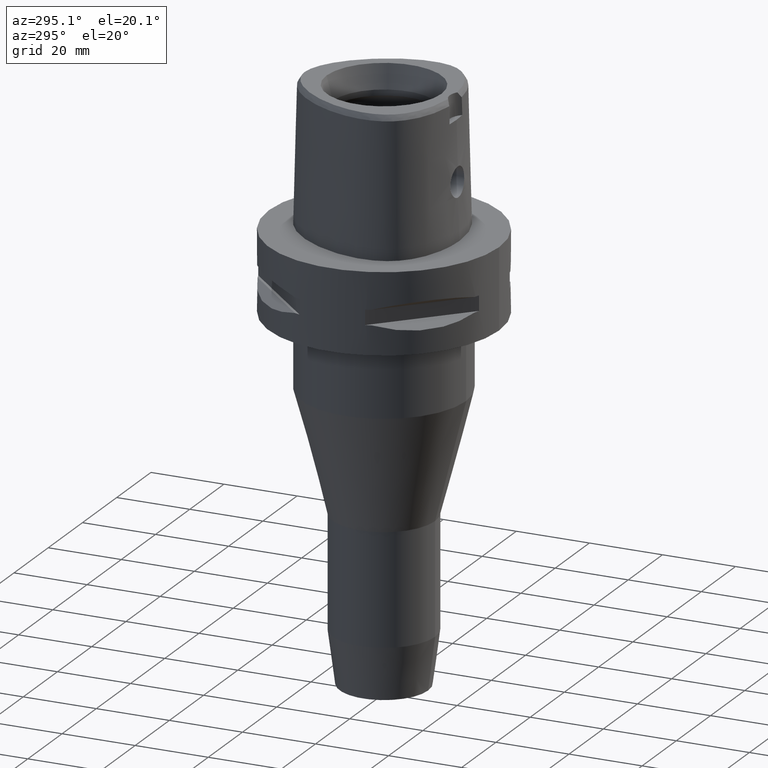
[diagram: clean part render]
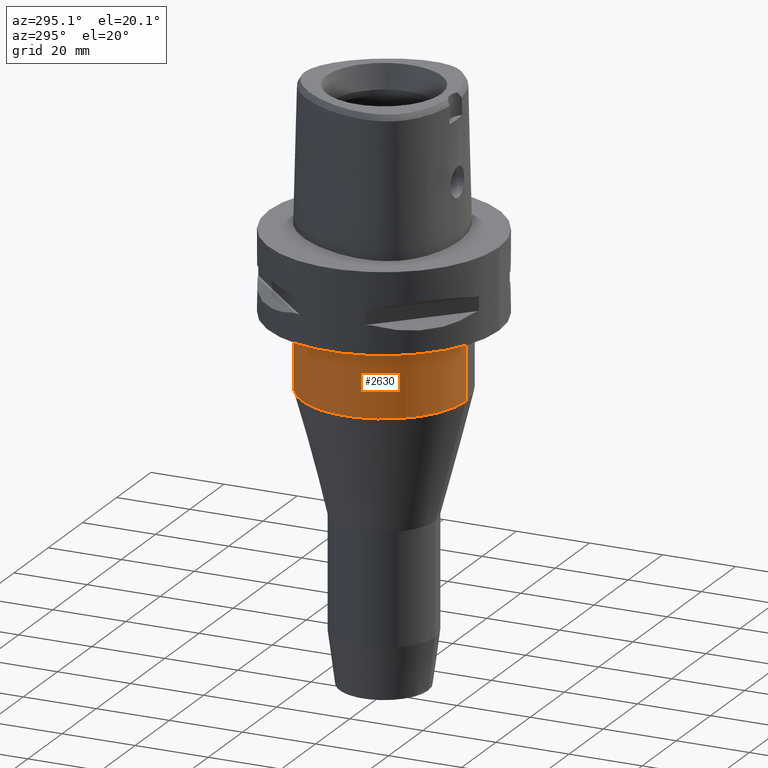
[diagram: same view with one face highlighted and labeled with its STEP entity id]
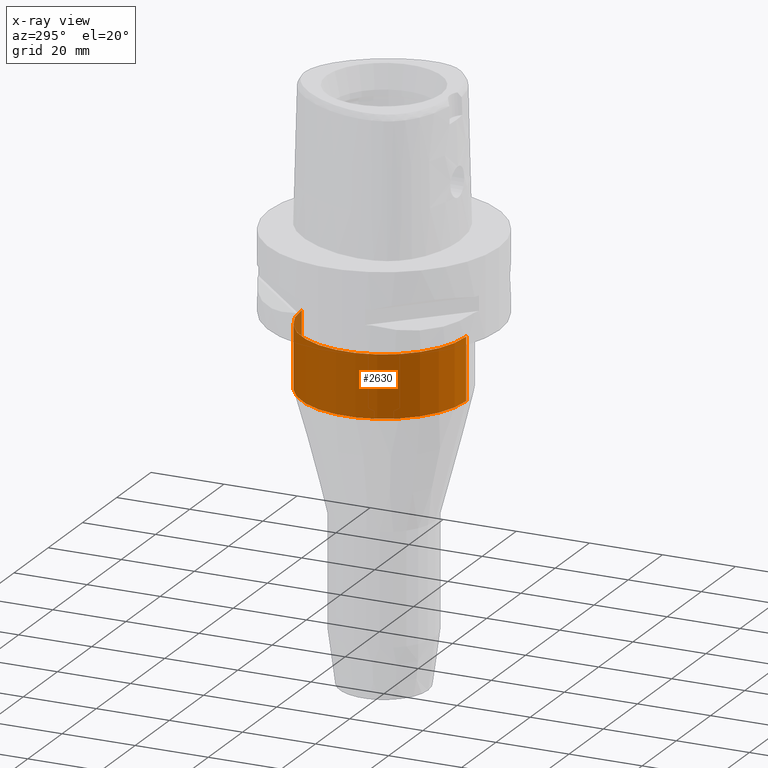
[diagram: x-ray of the same camera — body ghosted, the highlighted face saturated]
A machine part, auxiliary view. The second image highlights one B-rep face of the part: STEP entity #2630.
The next image is the same camera in x-ray: the body ghosted, the highlighted face saturated — about 1% of this face is hidden behind the body in this view.
In plain terms, the highlighted cylindrical surface (partial cylindrical patch) has radius 22.5 mm, axis along (0, 0, -1).
Its self-contained STEP definition (entity closure, byte-faithful):
#581=CARTESIAN_POINT('',(0.E0,0.E0,-2.5E1));
#582=DIRECTION('',(0.E0,0.E0,-1.E0));
#583=DIRECTION('',(0.E0,-1.E0,0.E0));
#584=AXIS2_PLACEMENT_3D('',#581,#582,#583);
#604=DIRECTION('',(0.E0,1.003124182768E-14,-1.E0));
#605=VECTOR('',#604,1.699991481732E1);
#606=CARTESIAN_POINT('',(0.E0,2.25E1,-2.5E1));
#607=LINE('',#606,#605);
#611=DIRECTION('',(0.E0,-1.003124182768E-14,-1.E0));
#612=VECTOR('',#611,1.699991481732E1);
#613=CARTESIAN_POINT('',(0.E0,-2.25E1,-2.5E1));
#614=LINE('',#613,#612);
#618=CARTESIAN_POINT('',(0.E0,0.E0,-4.199991481732E1));
#619=DIRECTION('',(0.E0,0.E0,1.E0));
#620=DIRECTION('',(0.E0,1.E0,0.E0));
#621=AXIS2_PLACEMENT_3D('',#618,#619,#620);
#1672=CARTESIAN_POINT('',(0.E0,2.25E1,-2.5E1));
#1673=VERTEX_POINT('',#1672);
#1674=CARTESIAN_POINT('',(0.E0,-2.25E1,-2.5E1));
#1675=VERTEX_POINT('',#1674);
#1676=CARTESIAN_POINT('',(0.E0,2.25E1,-4.199991481732E1));
#1677=VERTEX_POINT('',#1676);
#1678=CARTESIAN_POINT('',(0.E0,-2.25E1,-4.199991481732E1));
#1679=VERTEX_POINT('',#1678);
#2618=CARTESIAN_POINT('',(0.E0,1.298125607096E-14,6.E0));
#2619=DIRECTION('',(0.E0,0.E0,-1.E0));
#2620=DIRECTION('',(0.E0,-1.E0,0.E0));
#2621=AXIS2_PLACEMENT_3D('',#2618,#2619,#2620);
#2622=CYLINDRICAL_SURFACE('',#2621,2.25E1);
#2623=ORIENTED_EDGE('',*,*,#2608,.F.);
#2624=ORIENTED_EDGE('',*,*,#2585,.F.);
#2625=ORIENTED_EDGE('',*,*,#2612,.T.);
#2627=ORIENTED_EDGE('',*,*,#2626,.F.);
#2628=EDGE_LOOP('',(#2623,#2624,#2625,#2627));
#2629=FACE_OUTER_BOUND('',#2628,.F.);
#585=CIRCLE('',#584,2.25E1);
#622=CIRCLE('',#621,2.25E1);
#2585=EDGE_CURVE('',#1675,#1673,#585,.T.);
#2608=EDGE_CURVE('',#1673,#1677,#607,.T.);
#2612=EDGE_CURVE('',#1675,#1679,#614,.T.);
#2626=EDGE_CURVE('',#1677,#1679,#622,.T.);
#2630=ADVANCED_FACE('',(#2629),#2622,.T.);